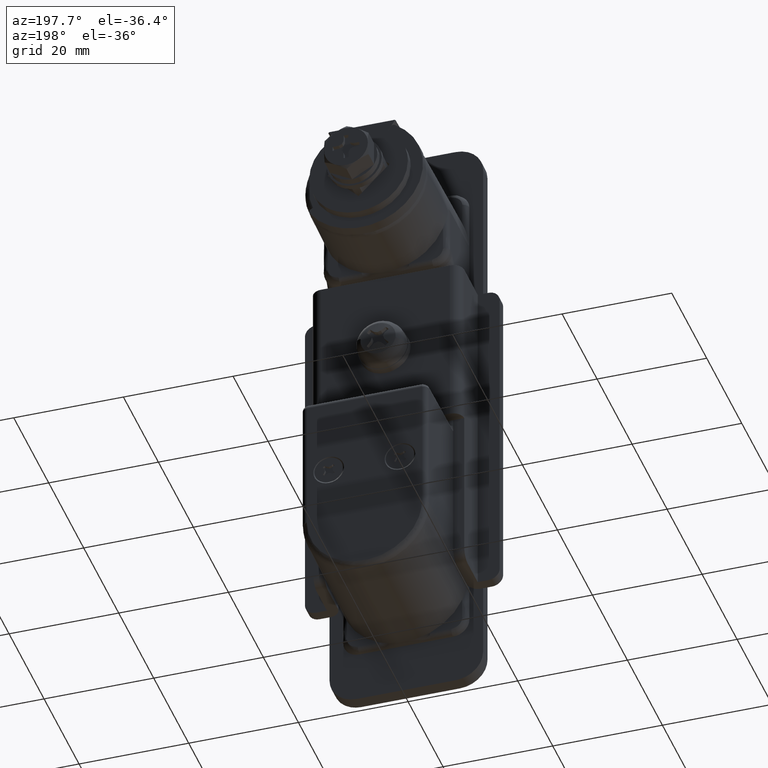
[diagram: clean part render]
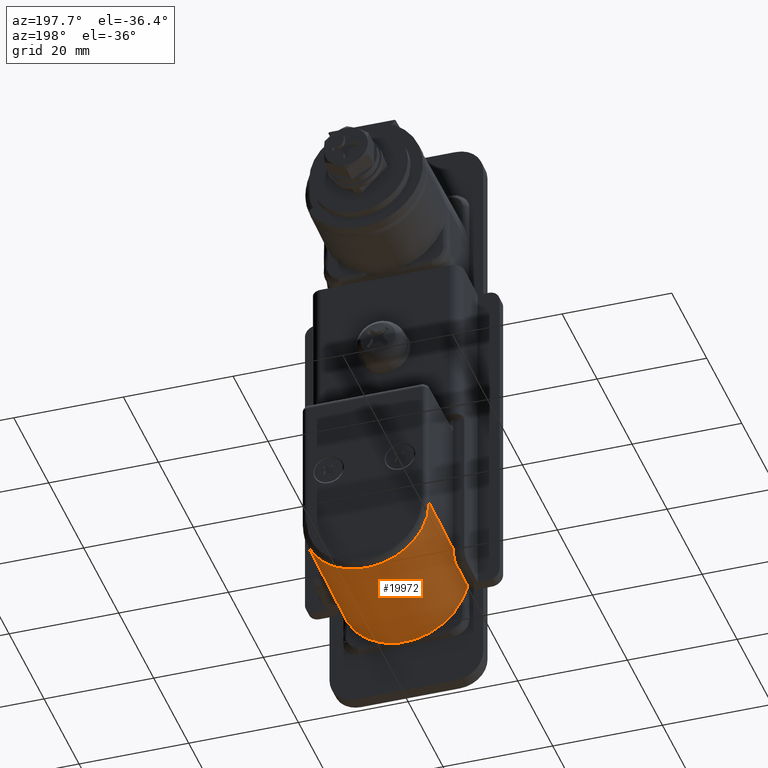
[diagram: same view with one face highlighted and labeled with its STEP entity id]
A machine part, auxiliary view. The second image highlights one B-rep face of the part: STEP entity #19972.
In plain terms, the highlighted face is a freeform B-spline surface patch.
Its self-contained STEP definition (entity closure, byte-faithful):
#16069=CARTESIAN_POINT('',(4.578419366847410,2.0,-82.500000000000000));
#16070=VERTEX_POINT('',#16069);
#16071=CARTESIAN_POINT('',(10.500000000000000,2.0,-76.639336876420799));
#16072=VERTEX_POINT('',#16071);
#16073=CARTESIAN_POINT('',(4.578419366847410,2.0,-82.500000000000000));
#16074=CARTESIAN_POINT('',(5.515377458658704,1.999999999999995,-82.093593388725694));
#16075=CARTESIAN_POINT('',(6.857542804175767,2.000000000000010,-81.283220793346700));
#16076=CARTESIAN_POINT('',(8.460011716011737,1.999999999999993,-79.803756190777733));
#16077=CARTESIAN_POINT('',(9.601018353177910,2.000000000000010,-78.377532342648877));
#16078=CARTESIAN_POINT('',(10.228496832974850,1.999999999999988,-77.247524607113903));
#16079=CARTESIAN_POINT('',(10.500000000000000,2.0,-76.639336876420799));
#16080=B_SPLINE_CURVE_WITH_KNOTS('',3,(#16073,#16074,#16075,#16076,#16077,#16078,#16079),.UNSPECIFIED.,.F.,.U.,(4,1,1,1,4),(0.000000020643125,3.063785104151159,4.662245189066678,6.527173209395417,8.525285357194598),.UNSPECIFIED.);
#16081=EDGE_CURVE('',#16070,#16072,#16080,.T.);
#16776=CARTESIAN_POINT('',(11.500000000000000,1.0,-71.972040514722309));
#16777=VERTEX_POINT('',#16776);
#16778=CARTESIAN_POINT('',(11.500000000000000,1.0,-71.972040514722309));
#16779=CARTESIAN_POINT('',(11.500000000000000,1.014580008037828,-72.021141158512506));
#16780=CARTESIAN_POINT('',(11.499678153963700,1.029298994119534,-72.070709401767687));
#16781=CARTESIAN_POINT('',(11.498389983335491,1.058585695729014,-72.169402676144969));
#16782=CARTESIAN_POINT('',(11.495492579874821,1.102455530338536,-72.317338558428517));
#16783=CARTESIAN_POINT('',(11.489710000868991,1.146064237671748,-72.464985519936462));
#16784=CARTESIAN_POINT('',(11.474312710305330,1.232717278955180,-72.759954857863121));
#16785=CARTESIAN_POINT('',(11.458942842825399,1.289736885143182,-72.956167937429811));
#16786=CARTESIAN_POINT('',(11.397474644353460,1.456743490831341,-73.543993188931211));
#16787=CARTESIAN_POINT('',(11.336105296283311,1.562835879951009,-73.934759436898048));
#16788=CARTESIAN_POINT('',(11.232583239421160,1.681405030586637,-74.423692667999859));
#16789=CARTESIAN_POINT('',(11.210531368431150,1.704404149685097,-74.521505590174073));
#16790=CARTESIAN_POINT('',(11.163668763713581,1.748721445992516,-74.717244414222534));
#16791=CARTESIAN_POINT('',(11.138837949817921,1.770049993545652,-74.815231408305337));
#16792=CARTESIAN_POINT('',(11.060530537925789,1.830764220940562,-75.107895596546058));
#16793=CARTESIAN_POINT('',(11.003136482691520,1.867020366127856,-75.301755409478687));
#16794=CARTESIAN_POINT('',(10.877827034703030,1.928502755700379,-75.687262114772707));
#16795=CARTESIAN_POINT('',(10.809913617772260,1.953756135015256,-75.878906171737640));
#16796=CARTESIAN_POINT('',(10.663239125973970,1.989469657600061,-76.260356495677186));
#16797=CARTESIAN_POINT('',(10.584483128729280,2.0,-76.450155415626355));
#16798=CARTESIAN_POINT('',(10.500000000000000,2.0,-76.639336876420799));
#16799=B_SPLINE_CURVE_WITH_KNOTS('',3,(#16778,#16779,#16780,#16781,#16782,#16783,#16784,#16785,#16786,#16787,#16788,#16789,#16790,#16791,#16792,#16793,#16794,#16795,#16796,#16797,#16798),.UNSPECIFIED.,.F.,.U.,(4,2,1,2,2,2,2,2,2,2,4),(0.0,0.031250000000003,0.062500000000006,0.125000000000012,0.250000000000024,0.500000000000040,0.562500000000038,0.625000000000036,0.750000000000024,0.875000000000012,1.0),.UNSPECIFIED.);
#16800=EDGE_CURVE('',#16777,#16072,#16799,.T.);
#17115=CARTESIAN_POINT('',(-4.578419366847410,2.0,-82.500000000000000));
#17116=VERTEX_POINT('',#17115);
#17128=CARTESIAN_POINT('',(-4.578419366847410,2.0,-82.500000000000000));
#17129=CARTESIAN_POINT('',(-3.723590507545928,1.999999999999992,-82.871386924065405));
#17130=CARTESIAN_POINT('',(-2.302104311665322,2.000000000000009,-83.292014142579163));
#17131=CARTESIAN_POINT('',(-0.099456600767861,1.999999999999989,-83.504147975930451));
#17132=CARTESIAN_POINT('',(2.112571756651234,2.000000000000017,-83.348216632012779));
#17133=CARTESIAN_POINT('',(3.723593722404154,1.999999999999997,-82.871352450517463));
#17134=CARTESIAN_POINT('',(4.578419366847410,2.0,-82.500000000000000));
#17135=B_SPLINE_CURVE_WITH_KNOTS('',3,(#17128,#17129,#17130,#17131,#17132,#17133,#17134),.UNSPECIFIED.,.F.,.U.,(4,1,1,1,4),(0.000000014824362,2.795984658064092,4.414711366879137,6.622053280157489,9.418035655511996),.UNSPECIFIED.);
#17136=EDGE_CURVE('',#17116,#16070,#17135,.T.);
#17301=CARTESIAN_POINT('',(-10.500000000000000,2.0,-76.639336876420799));
#17302=VERTEX_POINT('',#17301);
#17303=CARTESIAN_POINT('',(-11.500000000000000,1.0,-71.972040514722309));
#17304=VERTEX_POINT('',#17303);
#17305=CARTESIAN_POINT('',(-10.500000000000000,2.0,-76.639336876420799));
#17306=CARTESIAN_POINT('',(-10.584483128729280,2.0,-76.450155415626355));
#17307=CARTESIAN_POINT('',(-10.663239125973970,1.989469657600061,-76.260356495677186));
#17308=CARTESIAN_POINT('',(-10.809913617772260,1.953756135015256,-75.878906171737640));
#17309=CARTESIAN_POINT('',(-10.877827034703030,1.928502755700379,-75.687262114772707));
#17310=CARTESIAN_POINT('',(-11.003136482691520,1.867020366127856,-75.301755409478687));
#17311=CARTESIAN_POINT('',(-11.060530537925789,1.830764220940562,-75.107895596546058));
#17312=CARTESIAN_POINT('',(-11.138837949817921,1.770049993545652,-74.815231408305337));
#17313=CARTESIAN_POINT('',(-11.163668763713581,1.748721445992516,-74.717244414222534));
#17314=CARTESIAN_POINT('',(-11.210531368431150,1.704404149685097,-74.521505590174073));
#17315=CARTESIAN_POINT('',(-11.232583239421160,1.681405030586637,-74.423692667999859));
#17316=CARTESIAN_POINT('',(-11.336105296283311,1.562835879951009,-73.934759436898048));
#17317=CARTESIAN_POINT('',(-11.397474644353460,1.456743490831341,-73.543993188931211));
#17318=CARTESIAN_POINT('',(-11.458942842825399,1.289736885143182,-72.956167937429811));
#17319=CARTESIAN_POINT('',(-11.474312710305330,1.232717278955180,-72.759954857863121));
#17320=CARTESIAN_POINT('',(-11.489710000868991,1.146064237671748,-72.464985519936462));
#17321=CARTESIAN_POINT('',(-11.495492579874821,1.102455530338536,-72.317338558428517));
#17322=CARTESIAN_POINT('',(-11.498389983335491,1.058585695729014,-72.169402676144969));
#17323=CARTESIAN_POINT('',(-11.499678153963700,1.029298994119534,-72.070709401767687));
#17324=CARTESIAN_POINT('',(-11.500000000000000,1.014580008037828,-72.021141158512506));
#17325=CARTESIAN_POINT('',(-11.500000000000000,1.0,-71.972040514722309));
#17326=B_SPLINE_CURVE_WITH_KNOTS('',3,(#17305,#17306,#17307,#17308,#17309,#17310,#17311,#17312,#17313,#17314,#17315,#17316,#17317,#17318,#17319,#17320,#17321,#17322,#17323,#17324,#17325),.UNSPECIFIED.,.F.,.U.,(4,2,2,2,2,2,2,2,1,2,4),(0.0,0.124999999999988,0.249999999999976,0.374999999999964,0.437499999999962,0.499999999999960,0.749999999999976,0.874999999999988,0.937499999999994,0.968749999999997,1.0),.UNSPECIFIED.);
#17327=EDGE_CURVE('',#17302,#17304,#17326,.T.);
#18808=CARTESIAN_POINT('',(11.500000000000000,24.0,-71.407841509314991));
#18809=VERTEX_POINT('',#18808);
#18820=CARTESIAN_POINT('',(-11.500000000000000,24.0,-71.407841509314991));
#18821=VERTEX_POINT('',#18820);
#18822=CARTESIAN_POINT('',(-11.500000000000000,24.0,-71.407841509314991));
#18823=CARTESIAN_POINT('',(-11.500078835746290,24.001604832568720,-72.160610346193991));
#18824=CARTESIAN_POINT('',(-11.351745199738261,24.004814394724061,-73.666099714821243));
#18825=CARTESIAN_POINT('',(-10.652237294980329,24.009733415951960,-75.973434424027090));
#18826=CARTESIAN_POINT('',(-9.567132855672233,24.013877732397710,-77.917383177104625));
#18827=CARTESIAN_POINT('',(-8.291560897059819,24.017110190174950,-79.433612052397066));
#18828=CARTESIAN_POINT('',(-7.167475066417662,24.019256347476649,-80.440296717046991));
#18829=CARTESIAN_POINT('',(-5.736154154245353,24.021378648651549,-81.435791336239632));
#18830=CARTESIAN_POINT('',(-4.116017783806091,24.023038790368719,-82.214503691524698));
#18831=CARTESIAN_POINT('',(-2.160954526644570,24.024192536759831,-82.755684339218249));
#18832=CARTESIAN_POINT('',(-0.565243935951474,24.024569925044680,-82.932703516009752));
#18833=CARTESIAN_POINT('',(1.035809535792616,24.024486052880651,-82.893362121345348));
#18834=CARTESIAN_POINT('',(2.575719034937726,24.023998963618961,-82.664886189643994));
#18835=CARTESIAN_POINT('',(4.288739944128916,24.022866226740991,-82.133560342538161));
#18836=CARTESIAN_POINT('',(5.895561092829913,24.021167538998181,-81.336767444934935));
#18837=CARTESIAN_POINT('',(7.476781974176355,24.018792613302569,-80.222775808318332));
#18838=CARTESIAN_POINT('',(8.847130033871459,24.015870176338890,-78.851966471668291));
#18839=CARTESIAN_POINT('',(9.870495716424427,24.012730042346469,-77.379043338910634));
#18840=CARTESIAN_POINT('',(10.599352585782031,24.009688475186341,-75.952354338481612));
#18841=CARTESIAN_POINT('',(11.282613438317330,24.005616486853128,-74.042332083762574));
#18842=CARTESIAN_POINT('',(11.500384291154999,24.002206695197469,-72.442922308092619));
#18843=CARTESIAN_POINT('',(11.500000000000000,24.0,-71.407841509314991));
#18844=B_SPLINE_CURVE_WITH_KNOTS('',3,(#18822,#18823,#18824,#18825,#18826,#18827,#18828,#18829,#18830,#18831,#18832,#18833,#18834,#18835,#18836,#18837,#18838,#18839,#18840,#18841,#18842,#18843),.UNSPECIFIED.,.F.,.U.,(4,1,1,1,1,1,1,1,1,1,1,1,1,1,1,1,1,1,1,4),(0.000000474027516,2.258315188924392,4.516599873796185,7.198376908345711,8.892126637203987,10.444731501891431,11.715053401766991,14.114535318278820,15.808286517512091,17.784285103050781,18.913354508503961,20.607109176328240,22.441973589649489,24.276875554994980,25.970633756927882,28.228965433084959,30.063861039109799,31.334187696169639,33.027938770377503,36.133072657748727),.UNSPECIFIED.);
#18845=EDGE_CURVE('',#18821,#18809,#18844,.T.);
#19920=CARTESIAN_POINT('',(-10.500000000000000,2.0,-76.639336876420799));
#19921=CARTESIAN_POINT('',(-10.156163070813291,1.999999999999998,-77.409749212716306));
#19922=CARTESIAN_POINT('',(-9.455892340862633,1.999999999999999,-78.604446644559957));
#19923=CARTESIAN_POINT('',(-8.267015695075964,2.000000000000002,-79.988934433443731));
#19924=CARTESIAN_POINT('',(-6.780847540397840,1.999999999999998,-81.329530858642343));
#19925=CARTESIAN_POINT('',(-5.515381180867463,2.000000000000001,-82.093593690913892));
#19926=CARTESIAN_POINT('',(-4.578419366847410,2.0,-82.500000000000000));
#19927=B_SPLINE_CURVE_WITH_KNOTS('',3,(#19920,#19921,#19922,#19923,#19924,#19925,#19926),.UNSPECIFIED.,.F.,.U.,(4,1,1,1,4),(0.000000020646972,2.530944626364698,4.129447373557849,5.461500273687953,8.525285357194681),.UNSPECIFIED.);
#19928=EDGE_CURVE('',#17302,#17116,#19927,.T.);
#19936=CARTESIAN_POINT('',(-11.492718068490669,0.414965579297310,-71.577084725924848));
#19937=CARTESIAN_POINT('',(-11.492718068490669,24.579340579297309,-70.984323145868814));
#19938=CARTESIAN_POINT('',(-11.920157062787336,0.709375400613824,-83.578924192819201));
#19939=CARTESIAN_POINT('',(-11.920157062787336,24.873750400613822,-82.986162612763195));
#19940=CARTESIAN_POINT('',(0.092510954080687,0.707005540559972,-83.482315051866735));
#19941=CARTESIAN_POINT('',(0.092510954080701,24.871380540559969,-82.889553471810700));
#19942=CARTESIAN_POINT('',(12.105178970948712,0.704635680506125,-83.385705910914268));
#19943=CARTESIAN_POINT('',(12.105178970948723,24.869010680506118,-82.792944330858219));
#19944=CARTESIAN_POINT('',(11.484647526207480,0.410432602876995,-71.392294507104381));
#19945=CARTESIAN_POINT('',(11.484647526207480,24.574807602876991,-70.799532927048332));
#19953=(BOUNDED_SURFACE()B_SPLINE_SURFACE(1,2,((#19936,#19938,#19940,#19942,#19944),(#19937,#19939,#19941,#19943,#19945)),.UNSPECIFIED.,.F.,.F.,.U.)B_SPLINE_SURFACE_WITH_KNOTS((2,2),(3,2,3),(0.0,24.171644243439779),(0.0,19.644390057268289,39.288780114536578),.UNSPECIFIED.)GEOMETRIC_REPRESENTATION_ITEM()RATIONAL_B_SPLINE_SURFACE(((1.0,0.691513055782269,1.0,0.691513055782269,1.0),(1.0,0.691513055782269,1.0,0.691513055782269,1.0)))REPRESENTATION_ITEM('')SURFACE());
#19954=CARTESIAN_POINT('',(-11.500000000000000,24.0,-71.407841509314991));
#19955=CARTESIAN_POINT('',(-11.500000000000000,1.0,-71.972040514722309));
#19956=QUASI_UNIFORM_CURVE('',1,(#19954,#19955),.UNSPECIFIED.,.F.,.U.);
#19957=EDGE_CURVE('',#18821,#17304,#19956,.T.);
#19958=ORIENTED_EDGE('',*,*,#19957,.F.);
#19959=ORIENTED_EDGE('',*,*,#18845,.T.);
#19960=CARTESIAN_POINT('',(11.500000000000000,1.0,-71.972040514722309));
#19961=CARTESIAN_POINT('',(11.500000000000000,24.0,-71.407841509314991));
#19962=QUASI_UNIFORM_CURVE('',1,(#19960,#19961),.UNSPECIFIED.,.F.,.U.);
#19963=EDGE_CURVE('',#16777,#18809,#19962,.T.);
#19964=ORIENTED_EDGE('',*,*,#19963,.F.);
#19965=ORIENTED_EDGE('',*,*,#16800,.T.);
#19966=ORIENTED_EDGE('',*,*,#16081,.F.);
#19967=ORIENTED_EDGE('',*,*,#17136,.F.);
#19968=ORIENTED_EDGE('',*,*,#19928,.F.);
#19969=ORIENTED_EDGE('',*,*,#17327,.T.);
#19970=EDGE_LOOP('',(#19958,#19959,#19964,#19965,#19966,#19967,#19968,#19969));
#19971=FACE_OUTER_BOUND('',#19970,.T.);
#19972=ADVANCED_FACE('',(#19971),#19953,.T.);